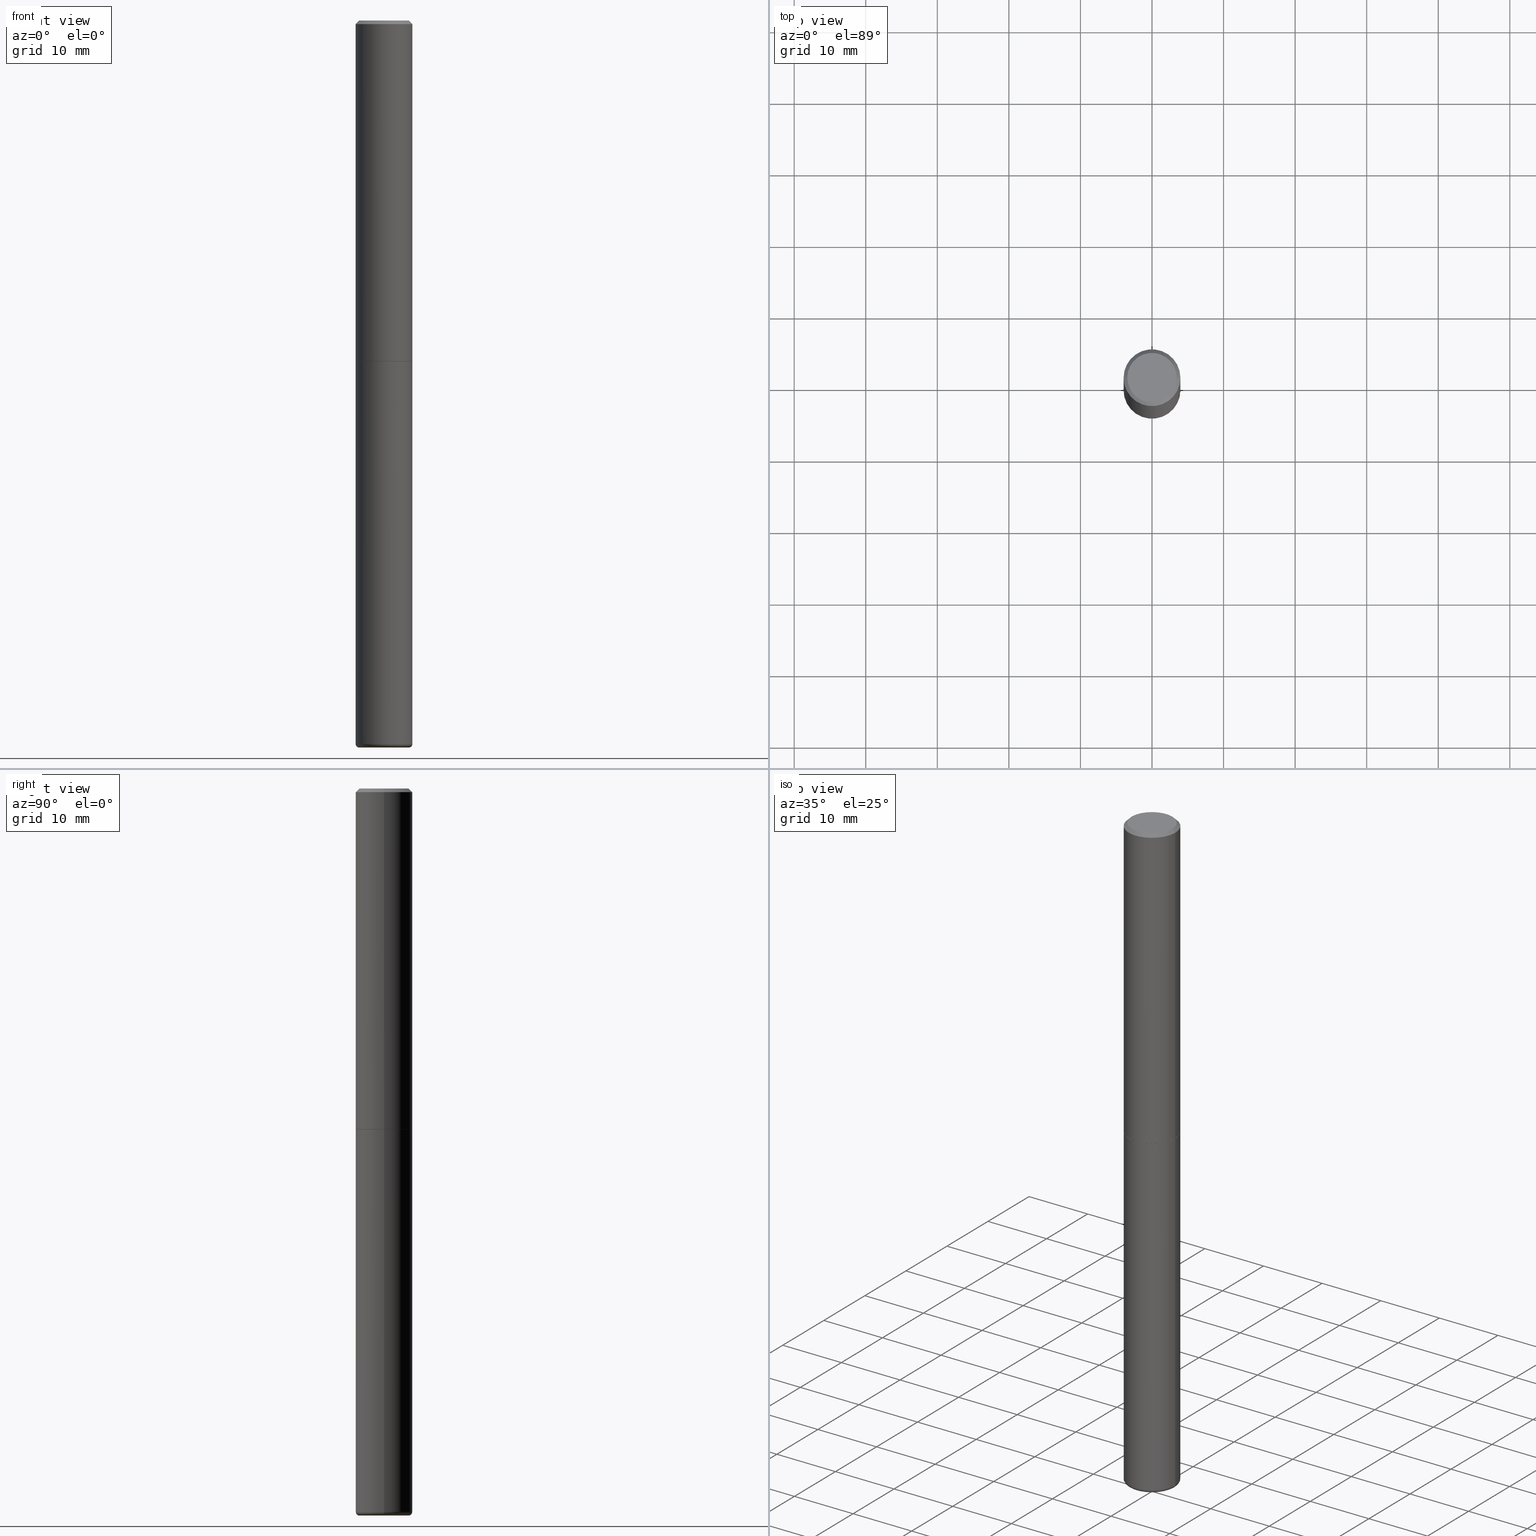
[diagram: canonical four-view strip — front | top / right | iso, engineering-drawing reading convention]
A machine part, canonical four-view strip (front | top / right | iso — engineering-drawing reading convention). The complete STEP part file that produces these views, byte-faithful:
ISO-10303-21;
HEADER;
FILE_DESCRIPTION (( 'STEP AP203' ),
    '1' );
FILE_NAME ('33400.STEP',
    '2022-11-02T20:11:04',
    ( '' ),
    ( '' ),
    'SwSTEP 2.0',
    'SolidWorks 2022',
    '' );
FILE_SCHEMA (( 'CONFIG_CONTROL_DESIGN' ));
ENDSEC;

DATA;
#1 = CIRCLE ( 'NONE', #400, 0.01999999999999983735 ) ;
#2 = DIRECTION ( 'NONE',  ( -2.445468806185136597E-29, 3.491481338843145583E-15, 1.000000000000000000 ) ) ;
#3 = ADVANCED_FACE ( 'NONE', ( #463 ), #321, .T. ) ;
#4 = AXIS2_PLACEMENT_3D ( 'NONE', #7, #408, #42 ) ;
#5 = DIRECTION ( 'NONE',  ( -1.000000000000000000, 6.982962677686269077E-15, 0.000000000000000000 ) ) ;
#6 = CARTESIAN_POINT ( 'NONE',  ( -0.1360754692900327800, -1.289246317802478605E-14, -4.000000000000000000 ) ) ;
#7 = CARTESIAN_POINT ( 'NONE',  ( 9.781519558921750224E-29, -1.396541755884454842E-14, -3.999854561293974431 ) ) ;
#8 = CARTESIAN_POINT ( 'NONE',  ( -0.1194098442900327905, -1.313158307281892239E-14, -3.999854561293974431 ) ) ;
#9 = DIRECTION ( 'NONE',  ( 1.000000000000000000, -6.982962677686269077E-15, 0.000000000000000000 ) ) ;
#10 = CARTESIAN_POINT ( 'NONE',  ( 4.890937612370292426E-31, -6.982962677686317493E-17, -0.02000000000000007674 ) ) ;
#11 = AXIS2_PLACEMENT_3D ( 'NONE', #446, #31, #401 ) ;
#12 = CALENDAR_DATE ( 2022, 2, 11 ) ;
#13 = DIRECTION ( 'NONE',  ( 1.000000000000000000, -6.982962677686269077E-15, 0.000000000000000000 ) ) ;
#14 = ORIENTED_EDGE ( 'NONE', *, *, #50, .T. ) ;
#15 = ORIENTED_EDGE ( 'NONE', *, *, #335, .F. ) ;
#16 = DIRECTION ( 'NONE',  ( 0.7071067811865232589, -2.468850131082003836E-15, 0.7071067811865715536 ) ) ;
#17 = DIRECTION ( 'NONE',  ( 1.000000000000000000, 0.000000000000000000, 0.000000000000000000 ) ) ;
#18 = EDGE_LOOP ( 'NONE', ( #398, #126 ) ) ;
#19 = DIRECTION ( 'NONE',  ( 1.000000000000000000, -6.982962677686259611E-15, 0.000000000000000000 ) ) ;
#20 = ORIENTED_EDGE ( 'NONE', *, *, #21, .T. ) ;
#21 = EDGE_CURVE ( 'NONE', #350, #133, #341, .T. ) ;
#22 = ORIENTED_EDGE ( 'NONE', *, *, #286, .T. ) ;
#23 = CARTESIAN_POINT ( 'NONE',  ( 0.1562500000000000000, -1.091087918388479174E-15, 7.619026212181150377E-30 ) ) ;
#24 = FACE_OUTER_BOUND ( 'NONE', #470, .T. ) ;
#25 = EDGE_CURVE ( 'NONE', #313, #68, #274, .T. ) ;
#26 = AXIS2_PLACEMENT_3D ( 'NONE', #256, #471, #437 ) ;
#27 = ADVANCED_FACE ( 'NONE', ( #83 ), #202, .T. ) ;
#28 = SHAPE_DEFINITION_REPRESENTATION ( #139, #177 ) ;
#29 = FACE_OUTER_BOUND ( 'NONE', #246, .T. ) ;
#30 = DIRECTION ( 'NONE',  ( 1.000000000000000000, -6.982962677686265133E-15, 0.000000000000000000 ) ) ;
#31 = DIRECTION ( 'NONE',  ( 2.445468806185136597E-29, -3.491481338843145583E-15, -1.000000000000000000 ) ) ;
#32 = AXIS2_PLACEMENT_3D ( 'NONE', #382, #439, #17 ) ;
#33 = AXIS2_PLACEMENT_3D ( 'NONE', #282, #384, #432 ) ;
#34 = DIRECTION ( 'NONE',  ( 7.105427357601001859E-15, 1.000000000000000000, -3.491481338843145583E-15 ) ) ;
#35 = DIRECTION ( 'NONE',  ( -2.445468806185136597E-29, 3.491481338843145583E-15, 1.000000000000000000 ) ) ;
#36 = EDGE_CURVE ( 'NONE', #59, #316, #278, .T. ) ;
#37 =( GEOMETRIC_REPRESENTATION_CONTEXT ( 3 ) GLOBAL_UNCERTAINTY_ASSIGNED_CONTEXT ( ( #486 ) ) GLOBAL_UNIT_ASSIGNED_CONTEXT ( ( #352, #275, #349 ) ) REPRESENTATION_CONTEXT ( 'NONE', 'WORKASPACE' ) );
#38 = DESIGN_CONTEXT ( 'detailed design', #329, 'design' ) ;
#39 = AXIS2_PLACEMENT_3D ( 'NONE', #52, #241, #9 ) ;
#40 = DIRECTION ( 'NONE',  ( 1.000000000000000000, -6.982962677686265133E-15, 0.000000000000000000 ) ) ;
#41 = EDGE_CURVE ( 'NONE', #59, #430, #157, .T. ) ;
#42 = DIRECTION ( 'NONE',  ( -1.000000000000000000, 6.982962677686259611E-15, 0.000000000000000000 ) ) ;
#43 = AXIS2_PLACEMENT_3D ( 'NONE', #418, #415, #373 ) ;
#44 = FACE_OUTER_BOUND ( 'NONE', #99, .T. ) ;
#45 = AXIS2_PLACEMENT_3D ( 'NONE', #235, #268, #194 ) ;
#46 = DIRECTION ( 'NONE',  ( 1.000000000000000000, -6.982962677686268288E-15, 0.000000000000000000 ) ) ;
#47 = APPROVAL_STATUS ( 'not_yet_approved' ) ;
#48 = AXIS2_PLACEMENT_3D ( 'NONE', #80, #259, #101 ) ;
#49 = AXIS2_PLACEMENT_3D ( 'NONE', #192, #462, #82 ) ;
#50 = EDGE_CURVE ( 'NONE', #200, #435, #461, .T. ) ;
#51 = CC_DESIGN_PERSON_AND_ORGANIZATION_ASSIGNMENT ( #223, #294, ( #269 ) ) ;
#52 = CARTESIAN_POINT ( 'NONE',  ( 4.582808542790946637E-29, -6.543036028992055700E-15, -1.874000000000000332 ) ) ;
#53 = COORDINATED_UNIVERSAL_TIME_OFFSET ( 5, 0, .BEHIND. ) ;
#54 = ORIENTED_EDGE ( 'NONE', *, *, #335, .T. ) ;
#55 = CARTESIAN_POINT ( 'NONE',  ( 4.585254011597131679E-29, -6.546527510330899496E-15, -1.875000000000000444 ) ) ;
#56 = VERTEX_POINT ( 'NONE', #115 ) ;
#57 = DIRECTION ( 'NONE',  ( 0.9993908270190957621, -6.978169709227536755E-15, -0.03489949670249930386 ) ) ;
#58 = CARTESIAN_POINT ( 'NONE',  ( 9.732967710936019417E-29, -1.389609838749393704E-14, -3.980000761538716514 ) ) ;
#59 = VERTEX_POINT ( 'NONE', #417 ) ;
#60 = EDGE_CURVE ( 'NONE', #316, #59, #362, .T. ) ;
#61 = CARTESIAN_POINT ( 'NONE',  ( 0.000000000000000000, 0.000000000000000000, 0.000000000000000000 ) ) ;
#62 = ORIENTED_EDGE ( 'NONE', *, *, #102, .F. ) ;
#63 = DIRECTION ( 'NONE',  ( 1.000000000000000000, -6.982962677686292743E-15, 0.000000000000000000 ) ) ;
#64 = DIRECTION ( 'NONE',  ( -2.445468806185136597E-29, 3.491481338843145583E-15, 1.000000000000000000 ) ) ;
#65 = ORIENTED_EDGE ( 'NONE', *, *, #140, .T. ) ;
#66 = ADVANCED_FACE ( 'NONE', ( #279 ), #414, .F. ) ;
#67 = VECTOR ( 'NONE', #339, 39.37007874015748143 ) ;
#68 = VERTEX_POINT ( 'NONE', #489 ) ;
#69 = PERSON_AND_ORGANIZATION_ROLE ( 'creator' ) ;
#70 = AXIS2_PLACEMENT_3D ( 'NONE', #264, #340, #227 ) ;
#71 = ADVANCED_FACE ( 'NONE', ( #94 ), #367, .T. ) ;
#72 = VECTOR ( 'NONE', #135, 39.37007874015748143 ) ;
#73 = LINE ( 'NONE', #368, #67 ) ;
#74 = CLOSED_SHELL ( 'NONE', ( #325, #108, #3, #271, #27, #251, #358, #146 ) ) ;
#75 = CARTESIAN_POINT ( 'NONE',  ( -0.1562499999999999722, -9.111089924287262910E-15, -3.980000761538716514 ) ) ;
#76 = CARTESIAN_POINT ( 'NONE',  ( 9.781875224740546387E-29, -1.396592535537258233E-14, -4.000000000000000000 ) ) ;
#77 = LOCAL_TIME ( 16, 11, 4.000000000000000000, #491 ) ;
#78 = CARTESIAN_POINT ( 'NONE',  ( 0.1562499999999999722, -1.498718630588241542E-14, -3.980000761538716514 ) ) ;
#79 = LINE ( 'NONE', #377, #220 ) ;
#80 = CARTESIAN_POINT ( 'NONE',  ( 0.000000000000000000, 0.000000000000000000, 0.000000000000000000 ) ) ;
#81 = DIRECTION ( 'NONE',  ( -0.7071067811865232589, 7.493145998870265808E-15, 0.7071067811865715536 ) ) ;
#82 = DIRECTION ( 'NONE',  ( 1.000000000000000000, -6.982962677686268288E-15, 0.000000000000000000 ) ) ;
#83 = FACE_OUTER_BOUND ( 'NONE', #356, .T. ) ;
#84 = DATE_TIME_ROLE ( 'creation_date' ) ;
#85 = DIRECTION ( 'NONE',  ( -2.445468806185136597E-29, 3.491481338843145583E-15, 1.000000000000000000 ) ) ;
#86 = VECTOR ( 'NONE', #307, 39.37007874015748143 ) ;
#87 = ORIENTED_EDGE ( 'NONE', *, *, #344, .F. ) ;
#88 = CARTESIAN_POINT ( 'NONE',  ( 0.1562499999999997224, -1.091087918388477399E-15, 7.619026212181136364E-30 ) ) ;
#89 = CALENDAR_DATE ( 2022, 2, 11 ) ;
#90 = ORIENTED_EDGE ( 'NONE', *, *, #457, .T. ) ;
#91 = CONICAL_SURFACE ( 'NONE', #366, 0.1360754692900327800, 1.562069680534921678 ) ;
#92 = PERSON_AND_ORGANIZATION ( #291, #314 ) ;
#93 = EDGE_CURVE ( 'NONE', #200, #296, #100, .T. ) ;
#94 = FACE_OUTER_BOUND ( 'NONE', #423, .T. ) ;
#95 = EDGE_LOOP ( 'NONE', ( #122, #207, #485, #216 ) ) ;
#96 = APPROVAL_ROLE ( '' ) ;
#97 = EDGE_LOOP ( 'NONE', ( #206, #324, #141, #87 ) ) ;
#98 = AXIS2_PLACEMENT_3D ( 'NONE', #10, #308, #458 ) ;
#99 = EDGE_LOOP ( 'NONE', ( #391, #143, #54, #250 ) ) ;
#100 = LINE ( 'NONE', #254, #407 ) ;
#101 = DIRECTION ( 'NONE',  ( 1.000000000000000000, -6.982962677686267499E-15, 4.876176775795935793E-29 ) ) ;
#102 = EDGE_CURVE ( 'NONE', #296, #435, #441, .T. ) ;
#103 = ORIENTED_EDGE ( 'NONE', *, *, #25, .T. ) ;
#104 = ADVANCED_FACE ( 'NONE', ( #29 ), #125, .T. ) ;
#105 = CIRCLE ( 'NONE', #385, 0.1562499999999994726 ) ;
#106 = CARTESIAN_POINT ( 'NONE',  ( 0.1362500000000001765, -1.484752705232869198E-14, -3.980000761538716514 ) ) ;
#107 = CIRCLE ( 'NONE', #453, 0.1562499999999994726 ) ;
#108 = ADVANCED_FACE ( 'NONE', ( #142 ), #405, .T. ) ;
#109 = DIRECTION ( 'NONE',  ( 0.9999619230641711987, -6.890705306874853727E-15, -0.008726535498377227182 ) ) ;
#110 = CARTESIAN_POINT ( 'NONE',  ( 9.514286648347494217E-16, 0.1362499999999993994, -4.757143324173764858E-16 ) ) ;
#111 = CIRCLE ( 'NONE', #45, 0.1562500000000000000 ) ;
#112 = FACE_OUTER_BOUND ( 'NONE', #213, .T. ) ;
#113 = CARTESIAN_POINT ( 'NONE',  ( 9.771322238536373205E-29, -1.395085848790416375E-14, -3.995684677646476946 ) ) ;
#114 = CARTESIAN_POINT ( 'NONE',  ( -0.1362499999999993994, 9.863434782231808736E-16, -6.775751096333110456E-30 ) ) ;
#115 = CARTESIAN_POINT ( 'NONE',  ( -0.1562499999999994726, 1.021258291611612128E-15, -0.02000000000000007674 ) ) ;
#116 = CARTESIAN_POINT ( 'NONE',  ( 4.890937612370292426E-31, -6.982962677686317493E-17, -0.02000000000000007674 ) ) ;
#117 = CARTESIAN_POINT ( 'NONE',  ( 9.781875224740546387E-29, -1.396592535537258233E-14, -4.000000000000000000 ) ) ;
#118 = EDGE_CURVE ( 'NONE', #430, #56, #105, .T. ) ;
#119 = AXIS2_PLACEMENT_3D ( 'NONE', #338, #2, #148 ) ;
#120 = DIRECTION ( 'NONE',  ( -2.445468806185136597E-29, 3.491481338843145583E-15, 1.000000000000000000 ) ) ;
#121 = CARTESIAN_POINT ( 'NONE',  ( 0.1552499999999999991, -7.630632466041692655E-15, -1.875000000000000444 ) ) ;
#122 = ORIENTED_EDGE ( 'NONE', *, *, #25, .F. ) ;
#123 = ORIENTED_EDGE ( 'NONE', *, *, #50, .F. ) ;
#124 = COORDINATED_UNIVERSAL_TIME_OFFSET ( 5, 0, .BEHIND. ) ;
#125 = TOROIDAL_SURFACE ( 'NONE', #225, 0.1362500000000001765, 0.01999999999999983735 ) ;
#126 = ORIENTED_EDGE ( 'NONE', *, *, #128, .T. ) ;
#127 = VECTOR ( 'NONE', #444, 39.37007874015748143 ) ;
#128 = EDGE_CURVE ( 'NONE', #166, #365, #190, .T. ) ;
#129 = APPROVAL_DATE_TIME ( #390, #310 ) ;
#130 = ORIENTED_EDGE ( 'NONE', *, *, #118, .F. ) ;
#131 = ORIENTED_EDGE ( 'NONE', *, *, #21, .F. ) ;
#132 = LINE ( 'NONE', #280, #72 ) ;
#133 = VERTEX_POINT ( 'NONE', #403 ) ;
#134 = LINE ( 'NONE', #23, #127 ) ;
#135 = DIRECTION ( 'NONE',  ( -2.445468806185136877E-29, 3.491481338843145188E-15, 1.000000000000000000 ) ) ;
#136 = ORIENTED_EDGE ( 'NONE', *, *, #416, .T. ) ;
#137 = ORIENTED_EDGE ( 'NONE', *, *, #431, .F. ) ;
#138 = PERSON_AND_ORGANIZATION ( #291, #314 ) ;
#139 = PRODUCT_DEFINITION_SHAPE ( 'NONE', 'NONE',  #222 ) ;
#140 = EDGE_CURVE ( 'NONE', #166, #430, #73, .T. ) ;
#141 = ORIENTED_EDGE ( 'NONE', *, *, #426, .T. ) ;
#142 = FACE_OUTER_BOUND ( 'NONE', #162, .T. ) ;
#143 = ORIENTED_EDGE ( 'NONE', *, *, #240, .F. ) ;
#144 = DATE_TIME_ROLE ( 'classification_date' ) ;
#145 = CC_DESIGN_APPROVAL ( #163, ( #269 ) ) ;
#146 = ADVANCED_FACE ( 'NONE', ( #371 ), #260, .F. ) ;
#147 = CIRCLE ( 'NONE', #323, 0.1362499999999993994 ) ;
#148 = DIRECTION ( 'NONE',  ( 1.000000000000000000, -6.982962677686266711E-15, 4.876176775795936353E-29 ) ) ;
#149 = AXIS2_PLACEMENT_3D ( 'NONE', #186, #253, #183 ) ;
#150 = DIRECTION ( 'NONE',  ( 2.445468806185136597E-29, -3.491481338843145583E-15, -1.000000000000000000 ) ) ;
#151 = ADVANCED_FACE ( 'NONE', ( #184 ), #218, .F. ) ;
#152 = CARTESIAN_POINT ( 'NONE',  ( -0.1552499999999999991, -5.443409913063343964E-15, -1.875000000000000444 ) ) ;
#153 = FACE_OUTER_BOUND ( 'NONE', #473, .T. ) ;
#154 = DIMENSIONAL_EXPONENTS ( 1.000000000000000000, 0.000000000000000000, 0.000000000000000000, 0.000000000000000000, 0.000000000000000000, 0.000000000000000000, 0.000000000000000000 ) ;
#155 = AXIS2_PLACEMENT_3D ( 'NONE', #332, #363, #483 ) ;
#156 = CC_DESIGN_DATE_AND_TIME_ASSIGNMENT ( #242, #84, ( #222 ) ) ;
#157 = LINE ( 'NONE', #88, #237 ) ;
#158 = CARTESIAN_POINT ( 'NONE',  ( -0.1562500000000000000, -2.196209803259297437E-15, -1.874000000000000332 ) ) ;
#159 = CIRCLE ( 'NONE', #43, 0.1360754692900327800 ) ;
#160 = APPROVAL_DATE_TIME ( #434, #233 ) ;
#161 = ORIENTED_EDGE ( 'NONE', *, *, #118, .T. ) ;
#162 = EDGE_LOOP ( 'NONE', ( #476, #90, #130, #243 ) ) ;
#163 = APPROVAL ( #221, 'UNSPECIFIED' ) ;
#164 = ORIENTED_EDGE ( 'NONE', *, *, #479, .T. ) ;
#165 = ORIENTED_EDGE ( 'NONE', *, *, #336, .F. ) ;
#166 = VERTEX_POINT ( 'NONE', #410 ) ;
#167 = CIRCLE ( 'NONE', #469, 0.01999999999999983735 ) ;
#168 = PERSON_AND_ORGANIZATION_ROLE ( 'design_owner' ) ;
#169 = ORIENTED_EDGE ( 'NONE', *, *, #372, .T. ) ;
#170 = DIRECTION ( 'NONE',  ( 1.000000000000000000, -6.982962677686266711E-15, 4.876176775795935793E-29 ) ) ;
#171 = CIRCLE ( 'NONE', #244, 0.1552499999999999991 ) ;
#172 = EDGE_CURVE ( 'NONE', #435, #296, #424, .T. ) ;
#173 = CALENDAR_DATE ( 2022, 2, 11 ) ;
#174 = PRODUCT_RELATED_PRODUCT_CATEGORY ( 'detail', '', ( #359 ) ) ;
#175 = ORIENTED_EDGE ( 'NONE', *, *, #204, .F. ) ;
#176 = CARTESIAN_POINT ( 'NONE',  ( 4.890937612370292426E-31, -6.982962677686317493E-17, -0.02000000000000007674 ) ) ;
#177 = ADVANCED_BREP_SHAPE_REPRESENTATION ( '33400', ( #459, #301, #32 ), #37 ) ;
#178 = ORIENTED_EDGE ( 'NONE', *, *, #36, .F. ) ;
#179 = DIRECTION ( 'NONE',  ( 1.000000000000000000, -6.982962677686266711E-15, 4.876176775795935793E-29 ) ) ;
#180 = DIRECTION ( 'NONE',  ( -0.9999619230641711987, 6.952228252019158991E-15, -0.008726535498377227182 ) ) ;
#181 = VECTOR ( 'NONE', #81, 39.37007874015748854 ) ;
#182 = EDGE_CURVE ( 'NONE', #388, #284, #460, .T. ) ;
#183 = DIRECTION ( 'NONE',  ( 1.000000000000000000, -6.982962677686266711E-15, 4.876176775795936353E-29 ) ) ;
#184 = FACE_OUTER_BOUND ( 'NONE', #281, .T. ) ;
#185 = AXIS2_PLACEMENT_3D ( 'NONE', #427, #311, #272 ) ;
#186 = CARTESIAN_POINT ( 'NONE',  ( 0.000000000000000000, 0.000000000000000000, 0.000000000000000000 ) ) ;
#187 = CARTESIAN_POINT ( 'NONE',  ( 9.781875224740546387E-29, -1.396592535537258233E-14, -4.000000000000000000 ) ) ;
#188 = FACE_OUTER_BOUND ( 'NONE', #355, .T. ) ;
#189 = LOCAL_TIME ( 16, 11, 4.000000000000000000, #53 ) ;
#190 = CIRCLE ( 'NONE', #297, 0.1362499999999993994 ) ;
#191 = LINE ( 'NONE', #409, #370 ) ;
#192 = CARTESIAN_POINT ( 'NONE',  ( 4.585254011597131679E-29, -6.546527510330899496E-15, -1.875000000000000444 ) ) ;
#193 = ADVANCED_FACE ( 'NONE', ( #429 ), #205, .F. ) ;
#194 = DIRECTION ( 'NONE',  ( 1.000000000000000000, -6.982962677686269077E-15, 0.000000000000000000 ) ) ;
#195 = ORIENTED_EDGE ( 'NONE', *, *, #41, .T. ) ;
#196 = COORDINATED_UNIVERSAL_TIME_OFFSET ( 5, 0, .BEHIND. ) ;
#197 = CARTESIAN_POINT ( 'NONE',  ( 4.582808542790946637E-29, -6.543036028992055700E-15, -1.874000000000000332 ) ) ;
#198 = CARTESIAN_POINT ( 'NONE',  ( 0.1562499999999994726, -1.141782438928661161E-15, -0.02000000000000007674 ) ) ;
#199 = CC_DESIGN_PERSON_AND_ORGANIZATION_ASSIGNMENT ( #203, #421, ( #222 ) ) ;
#200 = VERTEX_POINT ( 'NONE', #113 ) ;
#201 = AXIS2_PLACEMENT_3D ( 'NONE', #234, #35, #345 ) ;
#202 = CYLINDRICAL_SURFACE ( 'NONE', #261, 0.1562499999999997224 ) ;
#203 = PERSON_AND_ORGANIZATION ( #291, #314 ) ;
#204 = EDGE_CURVE ( 'NONE', #296, #388, #79, .T. ) ;
#205 = PLANE ( 'NONE',  #302 ) ;
#206 = ORIENTED_EDGE ( 'NONE', *, *, #215, .F. ) ;
#207 = ORIENTED_EDGE ( 'NONE', *, *, #344, .T. ) ;
#208 = MECHANICAL_CONTEXT ( 'NONE', #214, 'mechanical' ) ;
#209 = ORIENTED_EDGE ( 'NONE', *, *, #457, .F. ) ;
#210 = CIRCLE ( 'NONE', #33, 0.1562500000000000000 ) ;
#211 = CARTESIAN_POINT ( 'NONE',  ( 0.1562500000000000000, -7.637615428719378669E-15, -1.875000000000000444 ) ) ;
#212 = DIRECTION ( 'NONE',  ( -2.445468806185136597E-29, 3.491481338843145583E-15, 1.000000000000000000 ) ) ;
#213 = EDGE_LOOP ( 'NONE', ( #353, #22, #433, #175 ) ) ;
#214 = APPLICATION_CONTEXT ( 'configuration controlled 3d designs of mechanical parts and assemblies' ) ;
#215 = EDGE_CURVE ( 'NONE', #388, #313, #167, .T. ) ;
#216 = ORIENTED_EDGE ( 'NONE', *, *, #369, .F. ) ;
#217 = DIRECTION ( 'NONE',  ( -0.9993908270190957621, 6.856857904024562781E-15, -0.03489949670249930386 ) ) ;
#218 = CONICAL_SURFACE ( 'NONE', #4, 0.1194098442900327905, 1.535889741755011695 ) ;
#219 = ORIENTED_EDGE ( 'NONE', *, *, #372, .F. ) ;
#220 = VECTOR ( 'NONE', #180, 39.37007874015748143 ) ;
#221 = APPROVAL_STATUS ( 'not_yet_approved' ) ;
#222 = PRODUCT_DEFINITION ( 'UNKNOWN', '', #236, #38 ) ;
#223 = PERSON_AND_ORGANIZATION ( #291, #314 ) ;
#224 = CC_DESIGN_SECURITY_CLASSIFICATION ( #269, ( #236 ) ) ;
#225 = AXIS2_PLACEMENT_3D ( 'NONE', #330, #295, #445 ) ;
#226 = DIRECTION ( 'NONE',  ( -2.445468806185136597E-29, 3.491481338843145583E-15, 1.000000000000000000 ) ) ;
#227 = DIRECTION ( 'NONE',  ( 1.000000000000000000, -6.982962677686265922E-15, 4.876176775795935793E-29 ) ) ;
#228 = DIRECTION ( 'NONE',  ( -1.000000000000000000, 6.982962677686265922E-15, -4.876176775795935793E-29 ) ) ;
#229 = VECTOR ( 'NONE', #16, 39.37007874015748854 ) ;
#230 = VECTOR ( 'NONE', #57, 39.37007874015748143 ) ;
#231 = CYLINDRICAL_SURFACE ( 'NONE', #119, 0.1562500000000000000 ) ;
#232 = CONICAL_SURFACE ( 'NONE', #26, 0.1552499999999999991, 0.7853981633974141952 ) ;
#233 = APPROVAL ( #47, 'UNSPECIFIED' ) ;
#234 = CARTESIAN_POINT ( 'NONE',  ( 9.732967710936019417E-29, -1.389609838749393704E-14, -3.980000761538716514 ) ) ;
#235 = CARTESIAN_POINT ( 'NONE',  ( 4.585254011597131679E-29, -6.546527510330899496E-15, -1.875000000000000444 ) ) ;
#236 = PRODUCT_DEFINITION_FORMATION_WITH_SPECIFIED_SOURCE ( 'ANY', '', #359, .NOT_KNOWN. ) ;
#237 = VECTOR ( 'NONE', #351, 39.37007874015748143 ) ;
#238 = CARTESIAN_POINT ( 'NONE',  ( 0.000000000000000000, 0.000000000000000000, 0.000000000000000000 ) ) ;
#239 = PERSON_AND_ORGANIZATION ( #291, #314 ) ;
#240 = EDGE_CURVE ( 'NONE', #365, #166, #147, .T. ) ;
#241 = DIRECTION ( 'NONE',  ( -2.445468806185136597E-29, 3.491481338843145583E-15, 1.000000000000000000 ) ) ;
#242 = DATE_AND_TIME ( #89, #466 ) ;
#243 = ORIENTED_EDGE ( 'NONE', *, *, #41, .F. ) ;
#244 = AXIS2_PLACEMENT_3D ( 'NONE', #273, #412, #46 ) ;
#245 = APPROVAL_ROLE ( '' ) ;
#246 = EDGE_LOOP ( 'NONE', ( #276, #381, #137, #442 ) ) ;
#247 = DIRECTION ( 'NONE',  ( -6.982962677686266711E-15, -1.000000000000000000, 3.491481338843145583E-15 ) ) ;
#248 = DIRECTION ( 'NONE',  ( 1.000000000000000000, -6.982962677686269077E-15, 0.000000000000000000 ) ) ;
#249 = EDGE_CURVE ( 'NONE', #420, #255, #134, .T. ) ;
#250 = ORIENTED_EDGE ( 'NONE', *, *, #336, .T. ) ;
#251 = ADVANCED_FACE ( 'NONE', ( #24 ), #232, .T. ) ;
#252 = AXIS2_PLACEMENT_3D ( 'NONE', #117, #85, #248 ) ;
#253 = DIRECTION ( 'NONE',  ( -2.445468806185136597E-29, 3.491481338843145583E-15, 1.000000000000000000 ) ) ;
#254 = CARTESIAN_POINT ( 'NONE',  ( -0.1194098442900327905, -1.313158307281892239E-14, -3.999854561293974431 ) ) ;
#255 = VERTEX_POINT ( 'NONE', #211 ) ;
#256 = CARTESIAN_POINT ( 'NONE',  ( 4.585254011597131679E-29, -6.546527510330899496E-15, -1.875000000000000444 ) ) ;
#257 = CC_DESIGN_PERSON_AND_ORGANIZATION_ASSIGNMENT ( #448, #69, ( #236 ) ) ;
#258 = CALENDAR_DATE ( 2022, 2, 11 ) ;
#259 = DIRECTION ( 'NONE',  ( -2.445468806185136597E-29, 3.491481338843145583E-15, 1.000000000000000000 ) ) ;
#260 = PLANE ( 'NONE',  #354 ) ;
#261 = AXIS2_PLACEMENT_3D ( 'NONE', #238, #212, #386 ) ;
#262 = EDGE_CURVE ( 'NONE', #255, #68, #210, .T. ) ;
#263 = CONICAL_SURFACE ( 'NONE', #49, 0.1552499999999999991, 0.7853981633974141952 ) ;
#264 = CARTESIAN_POINT ( 'NONE',  ( 4.585254011597131679E-29, -6.546527510330899496E-15, -1.875000000000000444 ) ) ;
#265 = DIRECTION ( 'NONE',  ( 2.438088387897960049E-29, -3.491481338843145188E-15, -1.000000000000000000 ) ) ;
#266 = CARTESIAN_POINT ( 'NONE',  ( 0.1552499999999999991, -7.630632466041692655E-15, -1.875000000000000444 ) ) ;
#267 = DIRECTION ( 'NONE',  ( -2.445468806185136597E-29, 3.491481338843145583E-15, 1.000000000000000000 ) ) ;
#268 = DIRECTION ( 'NONE',  ( -2.445468806185136597E-29, 3.491481338843145583E-15, 1.000000000000000000 ) ) ;
#269 = SECURITY_CLASSIFICATION ( '', '', #487 ) ;
#270 = FACE_OUTER_BOUND ( 'NONE', #440, .T. ) ;
#271 = ADVANCED_FACE ( 'NONE', ( #44 ), #492, .T. ) ;
#272 = DIRECTION ( 'NONE',  ( -1.000000000000000000, 6.982962677686265922E-15, 0.000000000000000000 ) ) ;
#273 = CARTESIAN_POINT ( 'NONE',  ( 4.585254011597131679E-29, -6.546527510330899496E-15, -1.875000000000000444 ) ) ;
#274 = LINE ( 'NONE', #468, #86 ) ;
#275 =( NAMED_UNIT ( * ) PLANE_ANGLE_UNIT ( ) SI_UNIT ( $, .RADIAN. ) );
#276 = ORIENTED_EDGE ( 'NONE', *, *, #298, .T. ) ;
#277 = ORIENTED_EDGE ( 'NONE', *, *, #431, .T. ) ;
#278 = CIRCLE ( 'NONE', #39, 0.1562500000000000000 ) ;
#279 = FACE_OUTER_BOUND ( 'NONE', #287, .T. ) ;
#280 = CARTESIAN_POINT ( 'NONE',  ( -0.1562499999999997224, 1.110223024625154568E-15, -7.685836078523277147E-30 ) ) ;
#281 = EDGE_LOOP ( 'NONE', ( #123, #319, #481 ) ) ;
#282 = CARTESIAN_POINT ( 'NONE',  ( 4.585254011597131679E-29, -6.546527510330899496E-15, -1.875000000000000444 ) ) ;
#283 = LENGTH_MEASURE_WITH_UNIT ( LENGTH_MEASURE( 0.02539999999999999897 ), #428 );
#284 = VERTEX_POINT ( 'NONE', #346 ) ;
#285 = ORIENTED_EDGE ( 'NONE', *, *, #172, .T. ) ;
#286 = EDGE_CURVE ( 'NONE', #435, #284, #191, .T. ) ;
#287 = EDGE_LOOP ( 'NONE', ( #399, #14, #62 ) ) ;
#288 = PERSON_AND_ORGANIZATION ( #291, #314 ) ;
#289 = AXIS2_PLACEMENT_3D ( 'NONE', #197, #348, #13 ) ;
#290 = ORIENTED_EDGE ( 'NONE', *, *, #369, .T. ) ;
#291 = PERSON ( 'UNSPECIFIED', 'UNSPECIFIED', 'UNSPECIFIED', ('UNSPECIFIED'), ('UNSPECIFIED'), ('UNSPECIFIED') ) ;
#292 = DATE_AND_TIME ( #173, #77 ) ;
#293 = ORIENTED_EDGE ( 'NONE', *, *, #249, .F. ) ;
#294 = PERSON_AND_ORGANIZATION_ROLE ( 'classification_officer' ) ;
#295 = DIRECTION ( 'NONE',  ( -2.445468806185136597E-29, 3.491481338843145583E-15, 1.000000000000000000 ) ) ;
#296 = VERTEX_POINT ( 'NONE', #8 ) ;
#297 = AXIS2_PLACEMENT_3D ( 'NONE', #488, #443, #179 ) ;
#298 = EDGE_CURVE ( 'NONE', #284, #388, #159, .T. ) ;
#299 = LOCAL_TIME ( 16, 11, 4.000000000000000000, #320 ) ;
#300 = FACE_OUTER_BOUND ( 'NONE', #95, .T. ) ;
#301 = MANIFOLD_SOLID_BREP ( 'Body-Move/Copy2[2]', #74 ) ;
#302 = AXIS2_PLACEMENT_3D ( 'NONE', #482, #265, #228 ) ;
#303 = DIRECTION ( 'NONE',  ( -1.000000000000000000, 6.982962677686269077E-15, 0.000000000000000000 ) ) ;
#304 = LINE ( 'NONE', #411, #480 ) ;
#305 = CARTESIAN_POINT ( 'NONE',  ( 9.781519558921750224E-29, -1.396541755884454842E-14, -3.999854561293974431 ) ) ;
#306 = DIRECTION ( 'NONE',  ( 2.445468806185136597E-29, -3.491481338843145583E-15, -1.000000000000000000 ) ) ;
#307 = DIRECTION ( 'NONE',  ( -2.445468806185136877E-29, 3.491481338843145188E-15, 1.000000000000000000 ) ) ;
#308 = DIRECTION ( 'NONE',  ( 2.445468806185136597E-29, -3.491481338843145583E-15, -1.000000000000000000 ) ) ;
#309 = DIRECTION ( 'NONE',  ( 1.000000000000000000, -6.982962677686264344E-15, 0.000000000000000000 ) ) ;
#310 = APPROVAL ( #387, 'UNSPECIFIED' ) ;
#311 = DIRECTION ( 'NONE',  ( 2.445468806185136597E-29, -3.491481338843145583E-15, -1.000000000000000000 ) ) ;
#312 = CALENDAR_DATE ( 2022, 2, 11 ) ;
#313 = VERTEX_POINT ( 'NONE', #75 ) ;
#314 = ORGANIZATION ( 'UNSPECIFIED', 'UNSPECIFIED', '' ) ;
#315 = APPLICATION_PROTOCOL_DEFINITION ( 'international standard', 'config_control_design', 1994, #214 ) ;
#316 = VERTEX_POINT ( 'NONE', #158 ) ;
#317 = APPLICATION_PROTOCOL_DEFINITION ( 'international standard', 'config_control_design', 1994, #329 ) ;
#318 = ORIENTED_EDGE ( 'NONE', *, *, #128, .F. ) ;
#319 = ORIENTED_EDGE ( 'NONE', *, *, #93, .T. ) ;
#320 = COORDINATED_UNIVERSAL_TIME_OFFSET ( 5, 0, .BEHIND. ) ;
#321 = CONICAL_SURFACE ( 'NONE', #185, 0.1562499999999994726, 0.7853981633974479459 ) ;
#322 = ORIENTED_EDGE ( 'NONE', *, *, #416, .F. ) ;
#323 = AXIS2_PLACEMENT_3D ( 'NONE', #61, #392, #170 ) ;
#324 = ORIENTED_EDGE ( 'NONE', *, *, #182, .T. ) ;
#325 = ADVANCED_FACE ( 'NONE', ( #153 ), #263, .T. ) ;
#326 = CARTESIAN_POINT ( 'NONE',  ( -0.1362500000000001765, -1.292798391002079908E-14, -3.980000761538716514 ) ) ;
#327 = ORIENTED_EDGE ( 'NONE', *, *, #60, .T. ) ;
#328 = AXIS2_PLACEMENT_3D ( 'NONE', #76, #306, #5 ) ;
#329 = APPLICATION_CONTEXT ( 'configuration controlled 3d designs of mechanical parts and assemblies' ) ;
#330 = CARTESIAN_POINT ( 'NONE',  ( 9.732967710936019417E-29, -1.389609838749393704E-14, -3.980000761538716514 ) ) ;
#331 = APPROVAL_ROLE ( '' ) ;
#332 = CARTESIAN_POINT ( 'NONE',  ( 9.781519558921750224E-29, -1.396541755884454842E-14, -3.999854561293974431 ) ) ;
#333 = AXIS2_PLACEMENT_3D ( 'NONE', #305, #267, #19 ) ;
#334 = CIRCLE ( 'NONE', #201, 0.1562499999999999722 ) ;
#335 = EDGE_CURVE ( 'NONE', #365, #56, #304, .T. ) ;
#336 = EDGE_CURVE ( 'NONE', #56, #430, #107, .T. ) ;
#337 = DIRECTION ( 'NONE',  ( -1.000000000000000000, 6.982962677686265922E-15, -4.876176775795935793E-29 ) ) ;
#338 = CARTESIAN_POINT ( 'NONE',  ( 0.000000000000000000, 0.000000000000000000, 0.000000000000000000 ) ) ;
#339 = DIRECTION ( 'NONE',  ( 0.7071067811865472397, -7.319954787623254468E-15, -0.7071067811865477948 ) ) ;
#340 = DIRECTION ( 'NONE',  ( -2.438088387897960049E-29, 3.491481338843145188E-15, 1.000000000000000000 ) ) ;
#341 = CIRCLE ( 'NONE', #447, 0.1552499999999999991 ) ;
#342 = CC_DESIGN_DATE_AND_TIME_ASSIGNMENT ( #406, #144, ( #269 ) ) ;
#343 = DIRECTION ( 'NONE',  ( -0.7071067811865472397, 2.468850131082253905E-15, -0.7071067811865477948 ) ) ;
#344 = EDGE_CURVE ( 'NONE', #313, #420, #334, .T. ) ;
#345 = DIRECTION ( 'NONE',  ( 1.000000000000000000, -6.982962677686264344E-15, 0.000000000000000000 ) ) ;
#346 = CARTESIAN_POINT ( 'NONE',  ( 0.1360754692900327800, -1.491613527877352590E-14, -4.000000000000000000 ) ) ;
#347 = ADVANCED_FACE ( 'NONE', ( #188 ), #464, .F. ) ;
#348 = DIRECTION ( 'NONE',  ( -2.445468806185136597E-29, 3.491481338843145583E-15, 1.000000000000000000 ) ) ;
#349 =( NAMED_UNIT ( * ) SI_UNIT ( $, .STERADIAN. ) SOLID_ANGLE_UNIT ( ) );
#350 = VERTEX_POINT ( 'NONE', #266 ) ;
#351 = DIRECTION ( 'NONE',  ( -2.445468806185136877E-29, 3.491481338843145188E-15, 1.000000000000000000 ) ) ;
#352 =( CONVERSION_BASED_UNIT ( 'INCH', #283 ) LENGTH_UNIT ( ) NAMED_UNIT ( #154 ) );
#353 = ORIENTED_EDGE ( 'NONE', *, *, #102, .T. ) ;
#354 = AXIS2_PLACEMENT_3D ( 'NONE', #110, #375, #337 ) ;
#355 = EDGE_LOOP ( 'NONE', ( #361, #285, #477, #389 ) ) ;
#356 = EDGE_LOOP ( 'NONE', ( #209, #327, #195, #165 ) ) ;
#357 = ORIENTED_EDGE ( 'NONE', *, *, #262, .T. ) ;
#358 = ADVANCED_FACE ( 'NONE', ( #270 ), #454, .F. ) ;
#359 = PRODUCT ( '33400', '33400', '', ( #208 ) ) ;
#360 = ORIENTED_EDGE ( 'NONE', *, *, #262, .F. ) ;
#361 = ORIENTED_EDGE ( 'NONE', *, *, #286, .F. ) ;
#362 = CIRCLE ( 'NONE', #289, 0.1562500000000000000 ) ;
#363 = DIRECTION ( 'NONE',  ( -2.445468806185136597E-29, 3.491481338843145583E-15, 1.000000000000000000 ) ) ;
#364 = PERSON_AND_ORGANIZATION_ROLE ( 'design_supplier' ) ;
#365 = VERTEX_POINT ( 'NONE', #114 ) ;
#366 = AXIS2_PLACEMENT_3D ( 'NONE', #187, #150, #303 ) ;
#367 = CYLINDRICAL_SURFACE ( 'NONE', #149, 0.1562500000000000000 ) ;
#368 = CARTESIAN_POINT ( 'NONE',  ( 0.1562499999999994726, -1.141782438928661161E-15, -0.02000000000000007674 ) ) ;
#369 = EDGE_CURVE ( 'NONE', #68, #255, #111, .T. ) ;
#370 = VECTOR ( 'NONE', #109, 39.37007874015748143 ) ;
#371 = FACE_OUTER_BOUND ( 'NONE', #18, .T. ) ;
#372 = EDGE_CURVE ( 'NONE', #133, #316, #378, .T. ) ;
#373 = DIRECTION ( 'NONE',  ( 1.000000000000000000, -6.982962677686269077E-15, 0.000000000000000000 ) ) ;
#374 = CARTESIAN_POINT ( 'NONE',  ( 9.732967710936019417E-29, -1.389609838749393704E-14, -3.980000761538716514 ) ) ;
#375 = DIRECTION ( 'NONE',  ( 2.438088387897960049E-29, -3.491481338843145188E-15, -1.000000000000000000 ) ) ;
#376 = FACE_OUTER_BOUND ( 'NONE', #97, .T. ) ;
#377 = CARTESIAN_POINT ( 'NONE',  ( -0.1360754692900327800, -1.301571543197163876E-14, -4.000000000000000000 ) ) ;
#378 = LINE ( 'NONE', #152, #181 ) ;
#379 = AXIS2_PLACEMENT_3D ( 'NONE', #374, #451, #455 ) ;
#380 = CIRCLE ( 'NONE', #436, 0.1562499999999999722 ) ;
#381 = ORIENTED_EDGE ( 'NONE', *, *, #215, .T. ) ;
#382 = CARTESIAN_POINT ( 'NONE',  ( 0.000000000000000000, 0.000000000000000000, 0.000000000000000000 ) ) ;
#383 = APPROVAL_PERSON_ORGANIZATION ( #478, #163, #331 ) ;
#384 = DIRECTION ( 'NONE',  ( -2.445468806185136597E-29, 3.491481338843145583E-15, 1.000000000000000000 ) ) ;
#385 = AXIS2_PLACEMENT_3D ( 'NONE', #176, #64, #30 ) ;
#386 = DIRECTION ( 'NONE',  ( 1.000000000000000000, -6.982962677686267499E-15, 4.876176775795935793E-29 ) ) ;
#387 = APPROVAL_STATUS ( 'not_yet_approved' ) ;
#388 = VERTEX_POINT ( 'NONE', #6 ) ;
#389 = ORIENTED_EDGE ( 'NONE', *, *, #298, .F. ) ;
#390 = DATE_AND_TIME ( #312, #189 ) ;
#391 = ORIENTED_EDGE ( 'NONE', *, *, #140, .F. ) ;
#392 = DIRECTION ( 'NONE',  ( -2.445468806185136597E-29, 3.491481338843145583E-15, 1.000000000000000000 ) ) ;
#393 = EDGE_LOOP ( 'NONE', ( #318, #65, #161, #15 ) ) ;
#394 = ORIENTED_EDGE ( 'NONE', *, *, #479, .F. ) ;
#395 = APPROVAL_PERSON_ORGANIZATION ( #288, #233, #96 ) ;
#396 = DIRECTION ( 'NONE',  ( 1.000000000000000000, -6.982962677686268288E-15, 0.000000000000000000 ) ) ;
#397 = LINE ( 'NONE', #121, #229 ) ;
#398 = ORIENTED_EDGE ( 'NONE', *, *, #240, .T. ) ;
#399 = ORIENTED_EDGE ( 'NONE', *, *, #93, .F. ) ;
#400 = AXIS2_PLACEMENT_3D ( 'NONE', #106, #247, #63 ) ;
#401 = DIRECTION ( 'NONE',  ( -1.000000000000000000, 6.982962677686259611E-15, 0.000000000000000000 ) ) ;
#402 = ADVANCED_FACE ( 'NONE', ( #376 ), #419, .T. ) ;
#403 = CARTESIAN_POINT ( 'NONE',  ( -0.1552499999999999991, -5.438111458715121561E-15, -1.875000000000000444 ) ) ;
#404 = APPROVAL_DATE_TIME ( #292, #163 ) ;
#405 = CYLINDRICAL_SURFACE ( 'NONE', #48, 0.1562499999999997224 ) ;
#406 = DATE_AND_TIME ( #258, #299 ) ;
#407 = VECTOR ( 'NONE', #217, 39.37007874015748143 ) ;
#408 = DIRECTION ( 'NONE',  ( 2.445468806185136597E-29, -3.491481338843145583E-15, -1.000000000000000000 ) ) ;
#409 = CARTESIAN_POINT ( 'NONE',  ( 0.1360754692900327800, -1.489947083998267242E-14, -4.000000000000000000 ) ) ;
#410 = CARTESIAN_POINT ( 'NONE',  ( 0.1362499999999993994, -1.038262645562514180E-15, 6.957025900226667049E-30 ) ) ;
#411 = CARTESIAN_POINT ( 'NONE',  ( -0.1562499999999994726, 1.021258291611612128E-15, -0.02000000000000007674 ) ) ;
#412 = DIRECTION ( 'NONE',  ( -2.445468806185136597E-29, 3.491481338843145583E-15, 1.000000000000000000 ) ) ;
#413 = ADVANCED_FACE ( 'NONE', ( #112 ), #91, .F. ) ;
#414 = CONICAL_SURFACE ( 'NONE', #11, 0.1194098442900327905, 1.535889741755011695 ) ;
#415 = DIRECTION ( 'NONE',  ( -2.445468806185136597E-29, 3.491481338843145583E-15, 1.000000000000000000 ) ) ;
#416 = EDGE_CURVE ( 'NONE', #133, #350, #171, .T. ) ;
#417 = CARTESIAN_POINT ( 'NONE',  ( 0.1562500000000000000, -7.634123947380535662E-15, -1.874000000000000332 ) ) ;
#418 = CARTESIAN_POINT ( 'NONE',  ( 9.781875224740546387E-29, -1.396592535537258233E-14, -4.000000000000000000 ) ) ;
#419 = TOROIDAL_SURFACE ( 'NONE', #379, 0.1362500000000001765, 0.01999999999999983735 ) ;
#420 = VERTEX_POINT ( 'NONE', #78 ) ;
#421 = PERSON_AND_ORGANIZATION_ROLE ( 'creator' ) ;
#422 = CC_DESIGN_APPROVAL ( #310, ( #236 ) ) ;
#423 = EDGE_LOOP ( 'NONE', ( #277, #103, #360, #293 ) ) ;
#424 = CIRCLE ( 'NONE', #333, 0.1194098442900327905 ) ;
#425 = ADVANCED_FACE ( 'NONE', ( #300 ), #231, .T. ) ;
#426 = EDGE_CURVE ( 'NONE', #284, #420, #1, .T. ) ;
#427 = CARTESIAN_POINT ( 'NONE',  ( 4.890937612370292426E-31, -6.982962677686317493E-17, -0.02000000000000007674 ) ) ;
#428 =( LENGTH_UNIT ( ) NAMED_UNIT ( * ) SI_UNIT ( $, .METRE. ) );
#429 = FACE_OUTER_BOUND ( 'NONE', #438, .T. ) ;
#430 = VERTEX_POINT ( 'NONE', #198 ) ;
#431 = EDGE_CURVE ( 'NONE', #420, #313, #380, .T. ) ;
#432 = DIRECTION ( 'NONE',  ( 1.000000000000000000, -6.982962677686269077E-15, 0.000000000000000000 ) ) ;
#433 = ORIENTED_EDGE ( 'NONE', *, *, #182, .F. ) ;
#434 = DATE_AND_TIME ( #12, #449 ) ;
#435 = VERTEX_POINT ( 'NONE', #474 ) ;
#436 = AXIS2_PLACEMENT_3D ( 'NONE', #58, #472, #309 ) ;
#437 = DIRECTION ( 'NONE',  ( 1.000000000000000000, -6.982962677686268288E-15, 0.000000000000000000 ) ) ;
#438 = EDGE_LOOP ( 'NONE', ( #357, #290 ) ) ;
#439 = DIRECTION ( 'NONE',  ( 0.000000000000000000, 0.000000000000000000, 1.000000000000000000 ) ) ;
#440 = EDGE_LOOP ( 'NONE', ( #131, #322 ) ) ;
#441 = CIRCLE ( 'NONE', #155, 0.1194098442900327905 ) ;
#442 = ORIENTED_EDGE ( 'NONE', *, *, #426, .F. ) ;
#443 = DIRECTION ( 'NONE',  ( -2.445468806185136597E-29, 3.491481338843145583E-15, 1.000000000000000000 ) ) ;
#444 = DIRECTION ( 'NONE',  ( -2.445468806185136877E-29, 3.491481338843145188E-15, 1.000000000000000000 ) ) ;
#445 = DIRECTION ( 'NONE',  ( 1.000000000000000000, -6.982962677686262766E-15, 4.883557194083111780E-29 ) ) ;
#446 = CARTESIAN_POINT ( 'NONE',  ( 9.781519558921750224E-29, -1.396541755884454842E-14, -3.999854561293974431 ) ) ;
#447 = AXIS2_PLACEMENT_3D ( 'NONE', #55, #120, #396 ) ;
#448 = PERSON_AND_ORGANIZATION ( #291, #314 ) ;
#449 = LOCAL_TIME ( 16, 11, 4.000000000000000000, #196 ) ;
#450 = CLOSED_SHELL ( 'NONE', ( #413, #104, #71, #66, #151, #193, #425, #402, #347 ) ) ;
#451 = DIRECTION ( 'NONE',  ( -2.445468806185136597E-29, 3.491481338843145583E-15, 1.000000000000000000 ) ) ;
#452 = CC_DESIGN_PERSON_AND_ORGANIZATION_ASSIGNMENT ( #138, #364, ( #236 ) ) ;
#453 = AXIS2_PLACEMENT_3D ( 'NONE', #116, #226, #40 ) ;
#454 = PLANE ( 'NONE',  #70 ) ;
#455 = DIRECTION ( 'NONE',  ( 1.000000000000000000, -6.982962677686262766E-15, 4.883557194083111780E-29 ) ) ;
#456 = CC_DESIGN_APPROVAL ( #233, ( #222 ) ) ;
#457 = EDGE_CURVE ( 'NONE', #316, #56, #132, .T. ) ;
#458 = DIRECTION ( 'NONE',  ( -1.000000000000000000, 6.982962677686265922E-15, 0.000000000000000000 ) ) ;
#459 = MANIFOLD_SOLID_BREP ( 'Body-Move/Copy2[1]', #450 ) ;
#460 = CIRCLE ( 'NONE', #252, 0.1360754692900327800 ) ;
#461 = LINE ( 'NONE', #465, #230 ) ;
#462 = DIRECTION ( 'NONE',  ( -2.445468806185136597E-29, 3.491481338843145583E-15, 1.000000000000000000 ) ) ;
#463 = FACE_OUTER_BOUND ( 'NONE', #393, .T. ) ;
#464 = CONICAL_SURFACE ( 'NONE', #328, 0.1360754692900327800, 1.562069680534921678 ) ;
#465 = CARTESIAN_POINT ( 'NONE',  ( 0.1194098442900327905, -1.478462855651052827E-14, -3.999854561293974431 ) ) ;
#466 = LOCAL_TIME ( 16, 11, 4.000000000000000000, #124 ) ;
#467 = ORIENTED_EDGE ( 'NONE', *, *, #60, .F. ) ;
#468 = CARTESIAN_POINT ( 'NONE',  ( -0.1562500000000000000, 1.110223024625156540E-15, -7.685836078523291160E-30 ) ) ;
#469 = AXIS2_PLACEMENT_3D ( 'NONE', #326, #34, #484 ) ;
#470 = EDGE_LOOP ( 'NONE', ( #219, #136, #164, #467 ) ) ;
#471 = DIRECTION ( 'NONE',  ( -2.445468806185136597E-29, 3.491481338843145583E-15, 1.000000000000000000 ) ) ;
#472 = DIRECTION ( 'NONE',  ( -2.445468806185136597E-29, 3.491481338843145583E-15, 1.000000000000000000 ) ) ;
#473 = EDGE_LOOP ( 'NONE', ( #20, #169, #178, #394 ) ) ;
#474 = CARTESIAN_POINT ( 'NONE',  ( 0.1194098442900327905, -1.478462855651052827E-14, -3.999854561293974431 ) ) ;
#475 = CC_DESIGN_PERSON_AND_ORGANIZATION_ASSIGNMENT ( #239, #168, ( #359 ) ) ;
#476 = ORIENTED_EDGE ( 'NONE', *, *, #36, .T. ) ;
#477 = ORIENTED_EDGE ( 'NONE', *, *, #204, .T. ) ;
#478 = PERSON_AND_ORGANIZATION ( #291, #314 ) ;
#479 = EDGE_CURVE ( 'NONE', #350, #59, #397, .T. ) ;
#480 = VECTOR ( 'NONE', #343, 39.37007874015748143 ) ;
#481 = ORIENTED_EDGE ( 'NONE', *, *, #172, .F. ) ;
#482 = CARTESIAN_POINT ( 'NONE',  ( 1.091087918388524927E-15, 0.1562499999999934497, -1.875000000000000888 ) ) ;
#483 = DIRECTION ( 'NONE',  ( 1.000000000000000000, -6.982962677686259611E-15, 0.000000000000000000 ) ) ;
#484 = DIRECTION ( 'NONE',  ( -1.000000000000000000, 7.105427357600983715E-15, 0.000000000000000000 ) ) ;
#485 = ORIENTED_EDGE ( 'NONE', *, *, #249, .T. ) ;
#486 = UNCERTAINTY_MEASURE_WITH_UNIT (LENGTH_MEASURE( 1.000000000000000082E-05 ), #352, 'distance_accuracy_value', 'NONE');
#487 = SECURITY_CLASSIFICATION_LEVEL ( 'unclassified' ) ;
#488 = CARTESIAN_POINT ( 'NONE',  ( 0.000000000000000000, 0.000000000000000000, 0.000000000000000000 ) ) ;
#489 = CARTESIAN_POINT ( 'NONE',  ( -0.1562500000000000000, -9.111089924287261332E-15, -1.875000000000000444 ) ) ;
#490 = APPROVAL_PERSON_ORGANIZATION ( #92, #310, #245 ) ;
#491 = COORDINATED_UNIVERSAL_TIME_OFFSET ( 5, 0, .BEHIND. ) ;
#492 = CONICAL_SURFACE ( 'NONE', #98, 0.1562499999999994726, 0.7853981633974479459 ) ;
ENDSEC;
END-ISO-10303-21;
